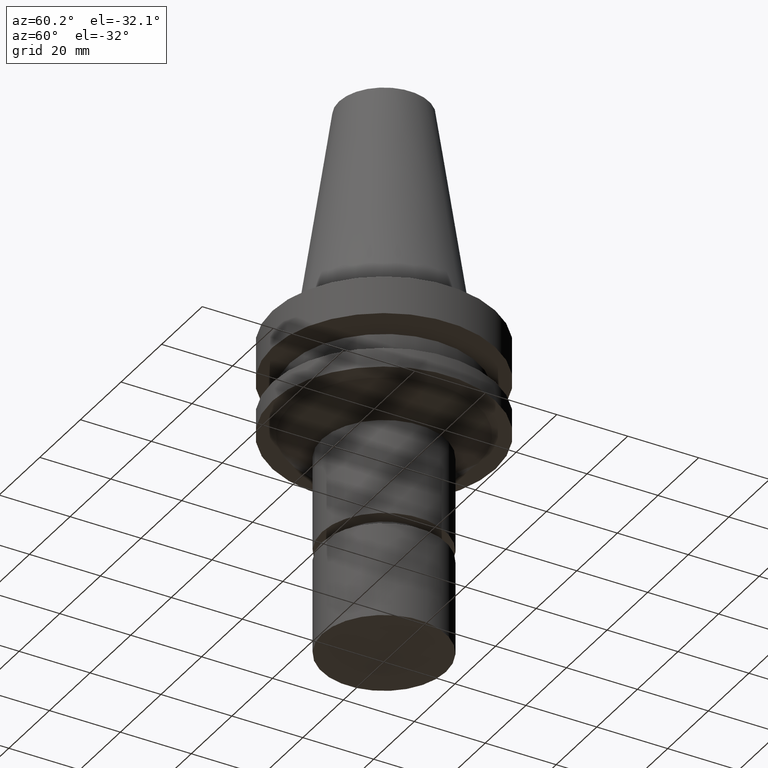
[diagram: clean part render]
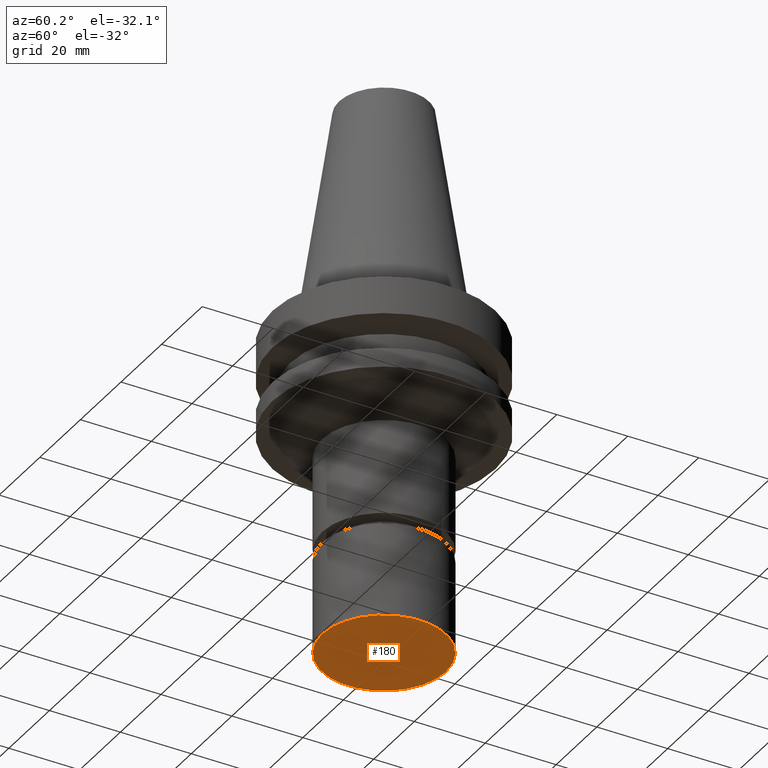
[diagram: same view with one face highlighted and labeled with its STEP entity id]
A machine part, auxiliary view. The second image highlights one B-rep face of the part: STEP entity #180.
In plain terms, the highlighted planar face has unit normal (0, 0, -1).
Its self-contained STEP definition (entity closure, byte-faithful):
#172=EDGE_CURVE('Unnamed[1]',#350,#350,#351,.T.);
#180=ADVANCED_FACE('Unnamed[1]',(#362),#363,.T.);
#350=VERTEX_POINT('',#562);
#351=CIRCLE('',#563,17.5);
#362=FACE_OUTER_BOUND('',#577,.T.);
#363=PLANE('',#578);
#562=CARTESIAN_POINT('',(5.51091059616308E-015,17.5,-89.9999999999999));
#563=AXIS2_PLACEMENT_3D('',#744,#745,#746);
#577=EDGE_LOOP('',(#757));
#578=AXIS2_PLACEMENT_3D('',#758,#759,#760);
#744=CARTESIAN_POINT('',(5.51091059616308E-015,5.27441600999819E-014,-89.9999999999999));
#745=DIRECTION('',(6.12323399573676E-017,-1.56164866711506E-016,-1.0));
#746=DIRECTION('',(4.73518747710694E-033,1.0,-1.56164866711506E-016));
#757=ORIENTED_EDGE('',*,*,#172,.T.);
#758=CARTESIAN_POINT('',(5.51091059616308E-015,8.75000000000003,-89.9999999999999));
#759=DIRECTION('',(6.12323399573677E-017,1.22464679914735E-016,-1.0));
#760=DIRECTION('',(-1.23259516440783E-032,1.0,1.22464679914735E-016));